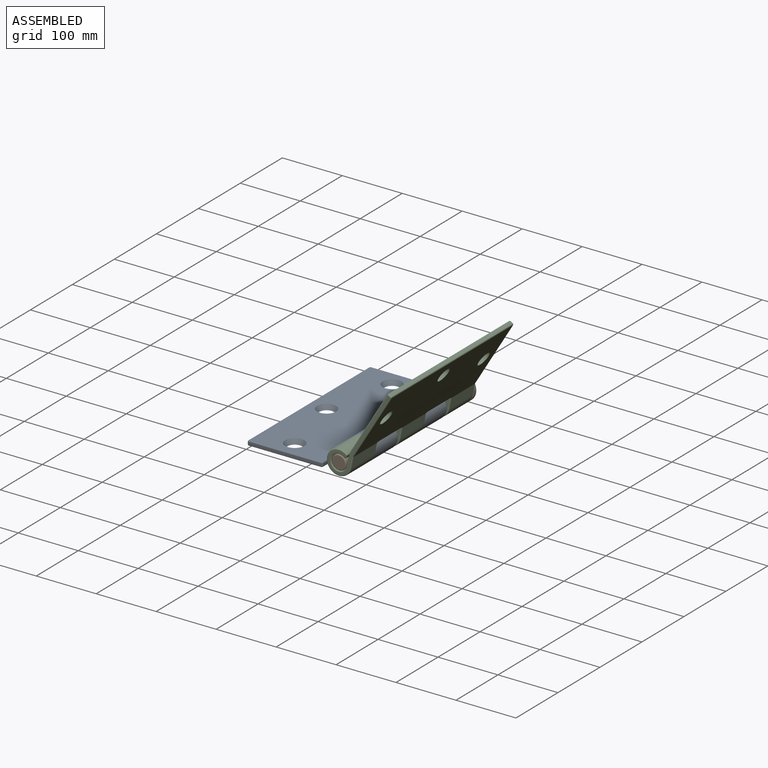
[diagram: assembled view]
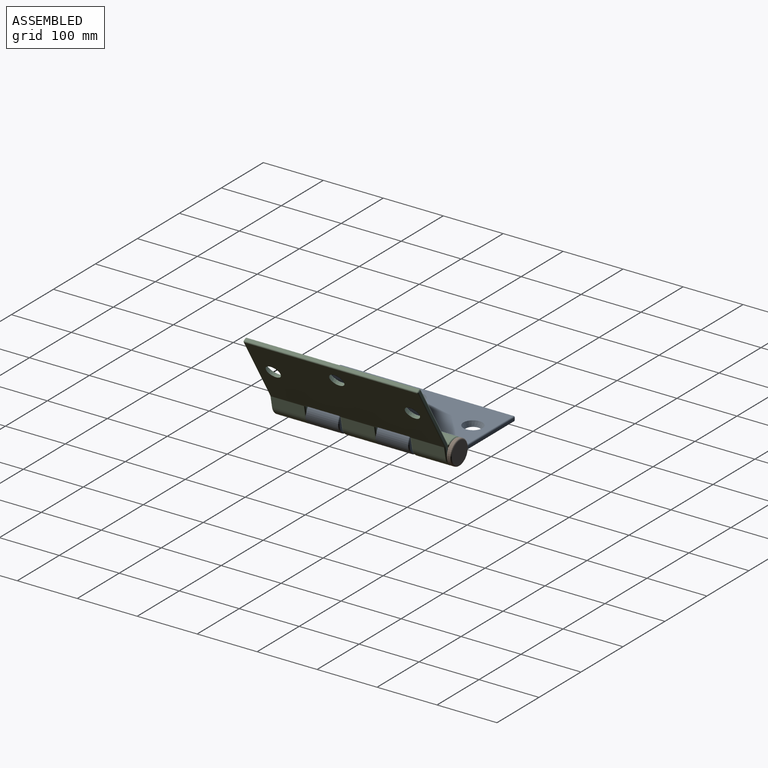
[diagram: assembled view, second angle]
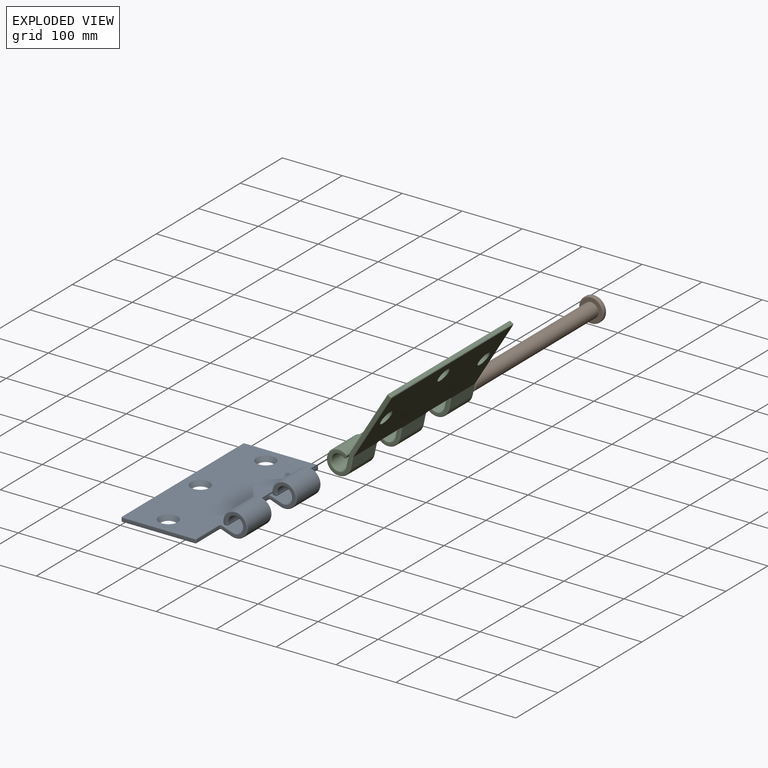
[diagram: exploded view]
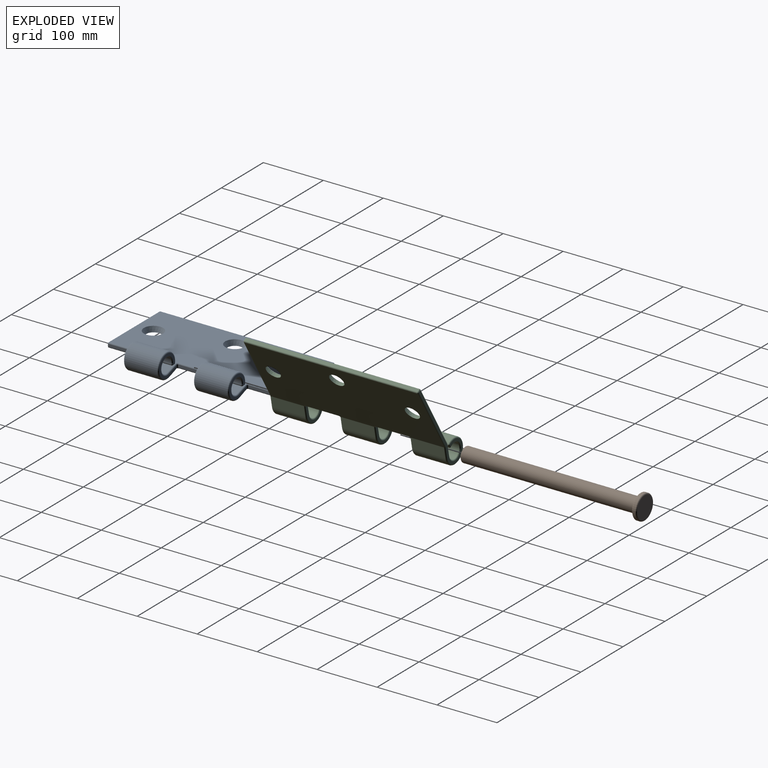
[diagram: exploded view, second angle]
ASSEMBLY  parts=3 mates=2
PART A: 113 faces, bbox 171.7x292x44.4 mm
  f0: cylinder r=12.5mm len=54.4mm, axis (0,1,0), area 3565.2mm2, adj f2,f63,f74,f83
  f1: cylinder r=12.5mm len=54.4mm, axis (0,1,0), area 3565.2mm2, adj f3,f32,f35,f45
  f2: plane 55.89x20.23mm, normal (0.32,0,0.95), area 1161.6mm2, adj f0,f84,f89,f90,f93,f96
  f3: plane 55.89x20.23mm, normal (0.32,0,0.95), area 1161.6mm2, adj f1,f39,f46,f51,f59,f65
  f4: plane 54.65x17.26mm, normal (-0.34,0,-0.94), area 997.5mm2, adj f6,f70,f71,f72,f75,f82
  f5: plane 54.65x17.26mm, normal (-0.34,0,-0.94), area 997.5mm2, adj f7,f29,f36,f49,f50,f58
  f6: cylinder r=20.5mm len=54.4mm, axis (0,1,0), area 5820.5mm2, adj f4,f47,f60,f61
  f7: cylinder r=20.5mm len=54.4mm, axis (0,1,0), area 5820.5mm2, adj f5,f26,f30,f44
  f8: plane 54.4x4.07mm, normal (0,0,-1), area 221.3mm2, adj f47,f54,f62,f63
  f9: plane 54.4x4.07mm, normal (0,0,-1), area 221.3mm2, adj f25,f30,f31,f32
  f10: plane 121x4mm, normal (0,-1,0), area 484mm2, adj f34,f104,f109,f111
  f11: plane 121x4mm, normal (0,1,0), area 484mm2, adj f79,f98,f100,f101
  f12: plane 288x122.68mm, normal (0,0,1), area 32629mm2, adj f15,f16,f17,f42,f48,f65,f78,f86
  f13: plane 288x4mm, normal (-1,0,0), area 1152mm2, adj f100,f103,f104,f105
  f14: plane 288x122.65mm, normal (0,0,-1), area 33682.1mm2, adj f15,f16,f17,f33,f40,f49,f56,f66
  f15: cone r=12mm half-angle=26.6deg, axis (0,0,1), area 786.8mm2, adj f12,f14
  f16: cone r=12mm half-angle=26.6deg, axis (0,0,1), area 786.8mm2, adj f12,f14
  f17: cone r=12mm half-angle=26.6deg, axis (0,0,1), area 786.8mm2, adj f12,f14
  f18: plane 54.4x4mm, normal (1,0,0), area 217.6mm2, adj f33,f34,f41,f42
  f19: plane 41x37mm, normal (0,-1,0), area 413.9mm2, adj f25,f26,f29,f35,f39,f41
  f20: plane 54.4x4mm, normal (1,0,0), area 217.6mm2, adj f66,f67,f85,f86
  f21: plane 41x37mm, normal (0,-1,0), area 413.9mm2, adj f54,f60,f70,f74,f84,f85
  f22: plane 41x37mm, normal (0,1,0), area 413.9mm2, adj f31,f44,f45,f50,f51,f67
  f23: plane 54.4x4mm, normal (1,0,0), area 217.6mm2, adj f69,f79,f87,f88
  f24: plane 41x37mm, normal (0,1,0), area 413.9mm2, adj f61,f62,f72,f83,f88,f89
  f25: cylinder r=2mm len=4.07mm, axis (-1,0,0), area 12.8mm2, adj f9,f19,f27,f28
  f26: torus R=18.5mm, axis (0,-1,0), area 324.2mm2, adj f7,f19,f27,f29
  f27: sphere r=2mm, area 5.8mm2, adj f25,f26,f30
  f28: sphere r=2mm, area 7.1mm2, adj f25,f32,f35
  f29: cylinder r=2mm len=16.94mm, axis (-0.94,0,0.34), area 54.3mm2, adj f5,f19,f26,f36
  f30: cylinder r=2mm len=54.4mm, axis (0,1,0), area 153.2mm2, adj f7,f9,f27,f37
  f31: cylinder r=2mm len=4.07mm, axis (1,0,0), area 12.8mm2, adj f9,f22,f37,f38
  f32: cylinder r=2mm len=54.4mm, axis (0,1,0), area 193.6mm2, adj f1,f9,f28,f38
  f33: cylinder r=2mm len=54.4mm, axis (0,-1,0), area 170.9mm2, adj f14,f18,f40,f108
  f34: cylinder r=2mm len=4mm, axis (0,0,1), area 12.6mm2, adj f10,f18,f108,f110
  f35: torus R=14.5mm, axis (0,-1,0), area 217.9mm2, adj f1,f19,f28,f39
  f36: bspline ~2.24x2.06mm, area 2.5mm2, adj f5,f29,f41,f43
  f37: sphere r=2mm, area 5.8mm2, adj f30,f31,f44
  f38: sphere r=2mm, area 6.9mm2, adj f31,f32,f45
  f39: cylinder r=2mm len=18.54mm, axis (0.95,0,-0.32), area 59.3mm2, adj f3,f19,f35,f46
  f40: torus R=4mm, axis (0,0,1), area 8.1mm2, adj f14,f33,f41,f43
  f41: cylinder r=2mm len=4.59mm, axis (0,0,-1), area 12.4mm2, adj f18,f19,f36,f40,f43,f46,f48
  f42: cylinder r=2mm len=54.4mm, axis (0,-1,0), area 170.9mm2, adj f12,f18,f48,f110
  f43: bspline ~2.58x2.31mm, area 2.1mm2, adj f36,f40,f41,f49
  f44: torus R=18.5mm, axis (0,-1,0), area 324.2mm2, adj f7,f22,f37,f50
  f45: torus R=14.5mm, axis (0,-1,0), area 217.9mm2, adj f1,f22,f38,f51
  f46: bspline ~3.27x2.99mm, area 5.5mm2, adj f3,f39,f41,f55
  f47: cylinder r=2mm len=54.4mm, axis (0,1,0), area 153.2mm2, adj f6,f8,f52,f53
  f48: torus R=4mm, axis (0,0,-1), area 8.1mm2, adj f12,f41,f42,f55
  f49: cylinder r=2mm len=55.92mm, axis (0,-1,0), area 38mm2, adj f5,f14,f43,f57
  f50: cylinder r=2mm len=16.94mm, axis (0.94,0,-0.34), area 54.3mm2, adj f5,f22,f44,f58
  f51: cylinder r=2mm len=18.54mm, axis (-0.95,0,0.32), area 59.3mm2, adj f3,f22,f45,f59
  f52: sphere r=2mm, area 5.8mm2, adj f47,f54,f60
  f53: sphere r=2mm, area 5.8mm2, adj f47,f61,f62
  f54: cylinder r=2mm len=4.07mm, axis (-1,0,0), area 12.8mm2, adj f8,f21,f52,f64
  f55: sphere r=2mm, area 1mm2, adj f46,f48,f65
  f56: torus R=4mm, axis (0,0,1), area 8.1mm2, adj f14,f57,f66,f67
  f57: bspline ~2.43x2.34mm, area 2.1mm2, adj f49,f56,f58,f67
  f58: bspline ~2.24x2.06mm, area 2.5mm2, adj f5,f50,f57,f67
  f59: bspline ~2.67x2.37mm, area 5.5mm2, adj f3,f51,f67,f68
  f60: torus R=18.5mm, axis (0,-1,0), area 324.2mm2, adj f6,f21,f52,f70
  f61: torus R=18.5mm, axis (0,-1,0), area 324.2mm2, adj f6,f24,f53,f72
  f62: cylinder r=2mm len=4.07mm, axis (1,0,0), area 12.8mm2, adj f8,f24,f53,f73
  f63: cylinder r=2mm len=54.4mm, axis (0,1,0), area 193.6mm2, adj f0,f8,f64,f73
  f64: sphere r=2mm, area 6.9mm2, adj f54,f63,f74
  f65: cylinder r=2mm len=55.89mm, axis (0,-1,0), area 36mm2, adj f3,f12,f55,f68
  f66: cylinder r=2mm len=54.4mm, axis (0,-1,0), area 170.9mm2, adj f14,f20,f56,f77
  f67: cylinder r=2mm len=4.59mm, axis (0,0,1), area 12.4mm2, adj f20,f22,f56,f57,f58,f59,f78
  f68: sphere r=2mm, area 1mm2, adj f59,f65,f78
  f69: cylinder r=2mm len=54.4mm, axis (0,-1,0), area 170.9mm2, adj f14,f23,f80,f97
  f70: cylinder r=2mm len=16.94mm, axis (-0.94,0,0.34), area 54.3mm2, adj f4,f21,f60,f75
  f71: cylinder r=2mm len=55.92mm, axis (0,-1,0), area 38mm2, adj f4,f14,f76,f81
  f72: cylinder r=2mm len=16.94mm, axis (0.94,0,-0.34), area 54.3mm2, adj f4,f24,f61,f82
  f73: sphere r=2mm, area 6.9mm2, adj f62,f63,f83
  f74: torus R=14.5mm, axis (0,-1,0), area 217.9mm2, adj f0,f21,f64,f84
  f75: bspline ~2.24x2.06mm, area 2.5mm2, adj f4,f70,f76,f85
  f76: bspline ~2.58x2.31mm, area 2.1mm2, adj f71,f75,f77,f85
  f77: torus R=4mm, axis (0,0,1), area 8.1mm2, adj f14,f66,f76,f85
  f78: torus R=4mm, axis (0,0,-1), area 8.1mm2, adj f12,f67,f68,f86
  f79: cylinder r=2mm len=4mm, axis (0,0,-1), area 12.6mm2, adj f11,f23,f97,f99
  f80: torus R=4mm, axis (0,0,1), area 8.1mm2, adj f14,f69,f81,f88
  f81: bspline ~2.43x2.34mm, area 2.1mm2, adj f71,f80,f82,f88
  f82: bspline ~2.24x2.06mm, area 2.5mm2, adj f4,f72,f81,f88
  f83: torus R=14.5mm, axis (0,-1,0), area 217.9mm2, adj f0,f24,f73,f89
  f84: cylinder r=2mm len=18.54mm, axis (0.95,0,-0.32), area 59.3mm2, adj f2,f21,f74,f90
  f85: cylinder r=2mm len=4.59mm, axis (0,0,-1), area 12.4mm2, adj f20,f21,f75,f76,f77,f90,f91
  f86: cylinder r=2mm len=54.4mm, axis (0,1,0), area 170.9mm2, adj f12,f20,f78,f91
  f87: cylinder r=2mm len=54.4mm, axis (0,1,0), area 170.9mm2, adj f12,f23,f92,f99
  f88: cylinder r=2mm len=4.59mm, axis (0,0,1), area 12.4mm2, adj f23,f24,f80,f81,f82,f92,f93
  f89: cylinder r=2mm len=18.54mm, axis (-0.95,0,0.32), area 59.3mm2, adj f2,f24,f83,f93
  f90: bspline ~2.67x2.37mm, area 5.5mm2, adj f2,f84,f85,f94
  f91: torus R=4mm, axis (0,0,-1), area 8.1mm2, adj f12,f85,f86,f94
  f92: torus R=4mm, axis (0,0,-1), area 8.1mm2, adj f12,f87,f88,f95
  f93: bspline ~3.27x2.99mm, area 5.5mm2, adj f2,f88,f89,f95
  f94: sphere r=2mm, area 1mm2, adj f90,f91,f96
  f95: sphere r=2mm, area 1mm2, adj f92,f93,f96
  f96: cylinder r=2mm len=55.89mm, axis (0,-1,0), area 36mm2, adj f2,f12,f94,f95
  f97: sphere r=2mm, area 6.3mm2, adj f69,f79,f98
  f98: cylinder r=2mm len=121mm, axis (1,0,0), area 380.1mm2, adj f11,f14,f97,f106
  f99: sphere r=2mm, area 6.3mm2, adj f79,f87,f101
  f100: cylinder r=2mm len=4mm, axis (0,0,-1), area 12.6mm2, adj f11,f13,f102,f106
  f101: cylinder r=2mm len=121mm, axis (-1,0,0), area 380.1mm2, adj f11,f12,f99,f102
  f102: sphere r=2mm, area 6.3mm2, adj f100,f101,f103
  f103: cylinder r=2mm len=288mm, axis (0,1,0), area 904.8mm2, adj f12,f13,f102,f112
  f104: cylinder r=2mm len=4mm, axis (0,0,1), area 12.6mm2, adj f10,f13,f107,f112
  f105: cylinder r=2mm len=288mm, axis (0,1,0), area 904.8mm2, adj f13,f14,f106,f107
  f106: sphere r=2mm, area 6.3mm2, adj f98,f100,f105
  f107: sphere r=2mm, area 6.3mm2, adj f104,f105,f109
  f108: sphere r=2mm, area 6.3mm2, adj f33,f34,f109
  f109: cylinder r=2mm len=121mm, axis (-1,0,0), area 380.1mm2, adj f10,f14,f107,f108
  f110: sphere r=2mm, area 6.3mm2, adj f34,f42,f111
  f111: cylinder r=2mm len=121mm, axis (1,0,0), area 380.1mm2, adj f10,f12,f110,f112
  f112: sphere r=2mm, area 6.3mm2, adj f103,f104,f111
PART B: 8 faces, bbox 44.4x300x44.4 mm
  f0: cylinder r=12.25mm len=290mm, axis (0,1,0), area 22321mm2, adj f4,f7
  f1: plane 20.5x20.5mm, normal (0,-1,0), area 330.1mm2, adj f7
  f2: cylinder r=20.5mm len=41mm, axis (0,-1,0), area 515.2mm2, adj f5,f6
  f3: plane 37x37mm, normal (0,1,0), area 1075.2mm2, adj f6
  f4: plane 37x37mm, normal (0,-1,0), area 603.8mm2, adj f0,f5
  f5: torus R=18.5mm, axis (0,1,0), area 390.3mm2, adj f2,f4
  f6: torus R=18.5mm, axis (0,1,0), area 390.3mm2, adj f2,f3
  f7: torus R=10.25mm, axis (0,1,0), area 227.5mm2, adj f0,f1
PART C: 131 faces, bbox 171.7x292x44.4 mm
  f0: cylinder r=12.5mm len=54.4mm, axis (0,1,0), area 3565.2mm2, adj f2,f31,f35,f40
  f1: cylinder r=12.5mm len=54.4mm, axis (0,1,0), area 3565.2mm2, adj f3,f57,f58,f73
  f2: plane 55.15x20.23mm, normal (-0.32,0,0.95), area 1161mm2, adj f0,f39,f44,f45,f49
  f3: plane 55.89x20.23mm, normal (-0.32,0,0.95), area 1161.6mm2, adj f1,f64,f68,f78,f79,f85
  f4: plane 54.53x17.26mm, normal (0.34,0,-0.94), area 997.4mm2, adj f6,f42,f46,f50,f54
  f5: plane 54.65x17.26mm, normal (0.34,0,-0.94), area 997.5mm2, adj f7,f67,f75,f80,f86,f87
  f6: cylinder r=20.5mm len=54.4mm, axis (0,1,0), area 5820.5mm2, adj f4,f33,f38,f41
  f7: cylinder r=20.5mm len=54.4mm, axis (0,1,0), area 5820.5mm2, adj f5,f60,f61,f74
  f8: plane 54.4x4.07mm, normal (0,0,-1), area 221.3mm2, adj f29,f31,f32,f33
  f9: plane 54.4x4.07mm, normal (0,0,-1), area 221.3mm2, adj f51,f58,f59,f60
  f10: cylinder r=12.5mm len=54.4mm, axis (0,1,0), area 3565.2mm2, adj f11,f88,f89,f91
  f11: plane 55.15x20.23mm, normal (-0.32,0,0.95), area 1161mm2, adj f10,f83,f92,f99,f106
  f12: plane 288x122.68mm, normal (0,0,1), area 32720.1mm2, adj f20,f21,f22,f44,f55,f63,f70,f78
  f13: plane 288x4mm, normal (1,0,0), area 1152mm2, adj f119,f121,f122,f123
  f14: plane 288x122.65mm, normal (0,0,-1), area 33772mm2, adj f20,f21,f22,f43,f54,f69,f71,f77
  f15: plane 54.53x17.26mm, normal (0.34,0,-0.94), area 997.4mm2, adj f16,f105,f110,f115,f116
  f16: cylinder r=20.5mm len=54.4mm, axis (0,1,0), area 5820.5mm2, adj f15,f98,f104,f113
  f17: plane 54.4x4.07mm, normal (0,0,-1), area 221.3mm2, adj f89,f90,f103,f104
  f18: plane 166x37mm, normal (0,-1,0), area 913.5mm2, adj f29,f35,f38,f39,f42,f43,f47,f119
  f19: plane 166x37mm, normal (0,1,0), area 913.5mm2, adj f83,f88,f103,f113,f115,f117,f118,f123
  f20: cone r=12mm half-angle=26.6deg, axis (0,0,1), area 786.8mm2, adj f12,f14
  f21: cone r=12mm half-angle=26.6deg, axis (0,0,1), area 786.8mm2, adj f12,f14
  f22: cone r=12mm half-angle=26.6deg, axis (0,0,1), area 786.8mm2, adj f12,f14
  f23: plane 54.4x4mm, normal (-1,0,0), area 217.6mm2, adj f94,f101,f108,f111
  f24: plane 41x37mm, normal (0,1,0), area 413.9mm2, adj f59,f73,f74,f79,f80,f94
  f25: plane 41x37mm, normal (0,-1,0), area 413.9mm2, adj f90,f91,f98,f99,f105,f111
  f26: plane 54.4x4mm, normal (-1,0,0), area 217.6mm2, adj f56,f63,f71,f76
  f27: plane 41x37mm, normal (0,1,0), area 413.9mm2, adj f32,f40,f41,f45,f46,f56
  f28: plane 41x37mm, normal (0,-1,0), area 413.9mm2, adj f51,f57,f61,f64,f67,f76
  f29: cylinder r=2mm len=4.07mm, axis (1,0,0), area 12.8mm2, adj f8,f18,f30,f34
  f30: sphere r=2mm, area 6.9mm2, adj f29,f31,f35
  f31: cylinder r=2mm len=54.4mm, axis (0,1,0), area 193.6mm2, adj f0,f8,f30,f36
  f32: cylinder r=2mm len=4.07mm, axis (1,0,0), area 12.8mm2, adj f8,f27,f36,f37
  f33: cylinder r=2mm len=54.4mm, axis (0,1,0), area 153.2mm2, adj f6,f8,f34,f37
  f34: sphere r=2mm, area 5.6mm2, adj f29,f33,f38
  f35: torus R=14.5mm, axis (0,-1,0), area 217.9mm2, adj f0,f18,f30,f39
  f36: sphere r=2mm, area 6.9mm2, adj f31,f32,f40
  f37: sphere r=2mm, area 5.8mm2, adj f32,f33,f41
  f38: torus R=18.5mm, axis (0,-1,0), area 324.2mm2, adj f6,f18,f34,f42
  f39: cylinder r=2mm len=20.87mm, axis (-0.95,0,-0.32), area 67mm2, adj f2,f18,f35,f127
  f40: torus R=14.5mm, axis (0,1,0), area 217.9mm2, adj f0,f27,f36,f45
  f41: torus R=18.5mm, axis (0,1,0), area 324.2mm2, adj f6,f27,f37,f46
  f42: cylinder r=2mm len=17.94mm, axis (0.94,0,0.34), area 57.6mm2, adj f4,f18,f38,f47
  f43: cylinder r=2mm len=122.65mm, axis (1,0,0), area 385.3mm2, adj f14,f18,f47,f120
  f44: cylinder r=2mm len=55.15mm, axis (0,-1,0), area 35.5mm2, adj f2,f12,f48,f127
  f45: cylinder r=2mm len=18.54mm, axis (-0.95,0,-0.32), area 59.3mm2, adj f2,f27,f40,f49
  f46: cylinder r=2mm len=16.94mm, axis (0.94,0,0.34), area 54.3mm2, adj f4,f27,f41,f50
  f47: torus R=4mm, axis (0,-1,0), area 2.9mm2, adj f18,f42,f43,f54
  f48: sphere r=2mm, area 1mm2, adj f44,f49,f55
  f49: bspline ~3.27x2.99mm, area 5.5mm2, adj f2,f45,f48,f56
  f50: bspline ~2.24x2.06mm, area 2.5mm2, adj f4,f46,f56,f62
  f51: cylinder r=2mm len=4.07mm, axis (-1,0,0), area 12.8mm2, adj f9,f28,f52,f53
  f52: sphere r=2mm, area 6.9mm2, adj f51,f57,f58
  f53: sphere r=2mm, area 5.6mm2, adj f51,f60,f61
  f54: cylinder r=2mm len=55.16mm, axis (0,-1,0), area 37.7mm2, adj f4,f14,f47,f62
  f55: torus R=4mm, axis (0,0,-1), area 8.1mm2, adj f12,f48,f56,f63
  f56: cylinder r=2mm len=4.59mm, axis (0,0,1), area 12.4mm2, adj f26,f27,f49,f50,f55,f62,f69
  f57: torus R=14.5mm, axis (0,1,0), area 217.9mm2, adj f1,f28,f52,f64
  f58: cylinder r=2mm len=54.4mm, axis (0,1,0), area 193.6mm2, adj f1,f9,f52,f65
  f59: cylinder r=2mm len=4.07mm, axis (1,0,0), area 12.8mm2, adj f9,f24,f65,f66
  f60: cylinder r=2mm len=54.4mm, axis (0,1,0), area 153.2mm2, adj f7,f9,f53,f66
  f61: torus R=18.5mm, axis (0,1,0), area 324.2mm2, adj f7,f28,f53,f67
  f62: bspline ~2.45x2.31mm, area 2.1mm2, adj f50,f54,f56,f69
  f63: cylinder r=2mm len=54.4mm, axis (0,-1,0), area 170.9mm2, adj f12,f26,f55,f70
  f64: cylinder r=2mm len=18.54mm, axis (0.95,0,0.32), area 59.3mm2, adj f3,f28,f57,f68
  f65: sphere r=2mm, area 6.9mm2, adj f58,f59,f73
  f66: sphere r=2mm, area 5.8mm2, adj f59,f60,f74
  f67: cylinder r=2mm len=16.94mm, axis (-0.94,0,-0.34), area 54.3mm2, adj f5,f28,f61,f75
  f68: bspline ~2.67x2.37mm, area 5.5mm2, adj f3,f64,f72,f76
  f69: torus R=4mm, axis (0,0,1), area 8.1mm2, adj f14,f56,f62,f71
  f70: torus R=4mm, axis (0,0,-1), area 8.1mm2, adj f12,f63,f72,f76
  f71: cylinder r=2mm len=54.4mm, axis (0,1,0), area 170.9mm2, adj f14,f26,f69,f77
  f72: sphere r=2mm, area 1mm2, adj f68,f70,f78
  f73: torus R=14.5mm, axis (0,1,0), area 217.9mm2, adj f1,f24,f65,f79
  f74: torus R=18.5mm, axis (0,1,0), area 324.2mm2, adj f7,f24,f66,f80
  f75: bspline ~2.24x2.06mm, area 2.5mm2, adj f5,f67,f76,f82
  f76: cylinder r=2mm len=4.59mm, axis (0,0,-1), area 12.4mm2, adj f26,f28,f68,f70,f75,f77,f82
  f77: torus R=4mm, axis (0,0,1), area 8.1mm2, adj f14,f71,f76,f82
  f78: cylinder r=2mm len=55.89mm, axis (0,-1,0), area 36mm2, adj f3,f12,f72,f84
  f79: cylinder r=2mm len=18.54mm, axis (-0.95,0,-0.32), area 59.3mm2, adj f3,f24,f73,f85
  f80: cylinder r=2mm len=16.94mm, axis (0.94,0,0.34), area 54.3mm2, adj f5,f24,f74,f86
  f81: sphere r=2mm, area 6.9mm2, adj f89,f90,f91
  f82: bspline ~2.43x2.34mm, area 2.1mm2, adj f75,f76,f77,f87
  f83: cylinder r=2mm len=20.87mm, axis (0.95,0,0.32), area 67mm2, adj f11,f19,f88,f130
  f84: sphere r=2mm, area 1mm2, adj f78,f85,f93
  f85: bspline ~3.27x2.99mm, area 5.5mm2, adj f3,f79,f84,f94
  f86: bspline ~2.24x2.06mm, area 2.5mm2, adj f5,f80,f94,f95
  f87: cylinder r=2mm len=55.92mm, axis (0,-1,0), area 38mm2, adj f5,f14,f82,f95
  f88: torus R=14.5mm, axis (0,-1,0), area 217.9mm2, adj f10,f19,f83,f96
  f89: cylinder r=2mm len=54.4mm, axis (0,1,0), area 193.6mm2, adj f10,f17,f81,f96
  f90: cylinder r=2mm len=4.07mm, axis (-1,0,0), area 12.8mm2, adj f17,f25,f81,f97
  f91: torus R=14.5mm, axis (0,1,0), area 217.9mm2, adj f10,f25,f81,f99
  f92: cylinder r=2mm len=55.15mm, axis (0,-1,0), area 35.5mm2, adj f11,f12,f100,f130
  f93: torus R=4mm, axis (0,0,-1), area 8.1mm2, adj f12,f84,f94,f101
  f94: cylinder r=2mm len=4.59mm, axis (0,0,1), area 12.4mm2, adj f23,f24,f85,f86,f93,f95,f102
  f95: bspline ~2.58x2.31mm, area 2.1mm2, adj f86,f87,f94,f102
  f96: sphere r=2mm, area 6.9mm2, adj f88,f89,f103
  f97: sphere r=2mm, area 5.6mm2, adj f90,f98,f104
  f98: torus R=18.5mm, axis (0,1,0), area 324.2mm2, adj f16,f25,f97,f105
  f99: cylinder r=2mm len=18.54mm, axis (0.95,0,0.32), area 59.3mm2, adj f11,f25,f91,f106
  f100: sphere r=2mm, area 1mm2, adj f92,f106,f107
  f101: cylinder r=2mm len=54.4mm, axis (0,-1,0), area 170.9mm2, adj f12,f23,f93,f107
  f102: torus R=4mm, axis (0,0,1), area 8.1mm2, adj f14,f94,f95,f108
  f103: cylinder r=2mm len=4.07mm, axis (-1,0,0), area 12.8mm2, adj f17,f19,f96,f109
  f104: cylinder r=2mm len=54.4mm, axis (0,1,0), area 153.2mm2, adj f16,f17,f97,f109
  f105: cylinder r=2mm len=16.94mm, axis (-0.94,0,-0.34), area 54.3mm2, adj f15,f25,f98,f110
  f106: bspline ~2.67x2.37mm, area 5.5mm2, adj f11,f99,f100,f111
  f107: torus R=4mm, axis (0,0,-1), area 8.1mm2, adj f12,f100,f101,f111
  f108: cylinder r=2mm len=54.4mm, axis (0,1,0), area 170.9mm2, adj f14,f23,f102,f112
  f109: sphere r=2mm, area 5.6mm2, adj f103,f104,f113
  f110: bspline ~2.24x2.06mm, area 2.5mm2, adj f15,f105,f111,f114
  f111: cylinder r=2mm len=4.59mm, axis (0,0,-1), area 12.4mm2, adj f23,f25,f106,f107,f110,f112,f114
  f112: torus R=4mm, axis (0,0,1), area 8.1mm2, adj f14,f108,f111,f114
  f113: torus R=18.5mm, axis (0,-1,0), area 324.2mm2, adj f16,f19,f109,f115
  f114: bspline ~2.43x2.34mm, area 2.1mm2, adj f110,f111,f112,f116
  f115: cylinder r=2mm len=17.94mm, axis (-0.94,0,-0.34), area 57.6mm2, adj f15,f19,f113,f117
  f116: cylinder r=2mm len=55.16mm, axis (0,-1,0), area 37.7mm2, adj f14,f15,f114,f117
  f117: torus R=4mm, axis (0,-1,0), area 2.9mm2, adj f19,f115,f116,f118
  f118: cylinder r=2mm len=122.65mm, axis (-1,0,0), area 385.3mm2, adj f14,f19,f117,f124
  f119: cylinder r=2mm len=4mm, axis (0,0,1), area 12.6mm2, adj f13,f18,f120,f125
  f120: sphere r=2mm, area 6.3mm2, adj f43,f119,f122
  f121: cylinder r=2mm len=288mm, axis (0,1,0), area 904.8mm2, adj f12,f13,f125,f128
  f122: cylinder r=2mm len=288mm, axis (0,1,0), area 904.8mm2, adj f13,f14,f120,f124
  f123: cylinder r=2mm len=4mm, axis (0,0,-1), area 12.6mm2, adj f13,f19,f124,f128
  f124: sphere r=2mm, area 6.3mm2, adj f118,f122,f123
  f125: sphere r=2mm, area 6.3mm2, adj f119,f121,f126
  f126: cylinder r=2mm len=122.68mm, axis (-1,0,0), area 385.4mm2, adj f12,f18,f125,f127
  f127: sphere r=2mm, area 1.3mm2, adj f39,f44,f126
  f128: sphere r=2mm, area 6.3mm2, adj f121,f123,f129
  f129: cylinder r=2mm len=122.68mm, axis (1,0,0), area 385.4mm2, adj f12,f19,f128,f130
  f130: sphere r=2mm, area 1.3mm2, adj f83,f92,f129
PLACE A t=(-263.54,-21.57,-53.81)mm fixed
PLACE B t=(-263.54,-17.57,-53.81)mm fixed
PLACE C rot(axis=(0,-1,0),58.8deg) t=(-247.44,-17.57,-72.36)mm
MATE pin_slot C.f0 <-> B.f0  axis (0,-1,0) through (-239.04,-309.57,-48.81)mm
MATE revolute A.f0 <-> C.f91  axis (0,-1,0) through (-239.04,-253.17,-48.81)mm
